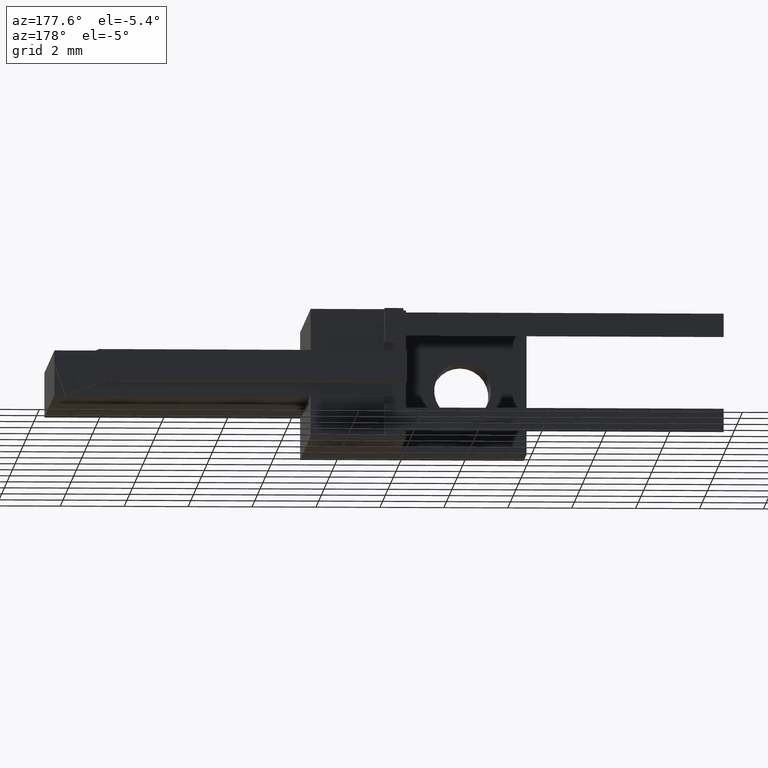
[diagram: clean part render]
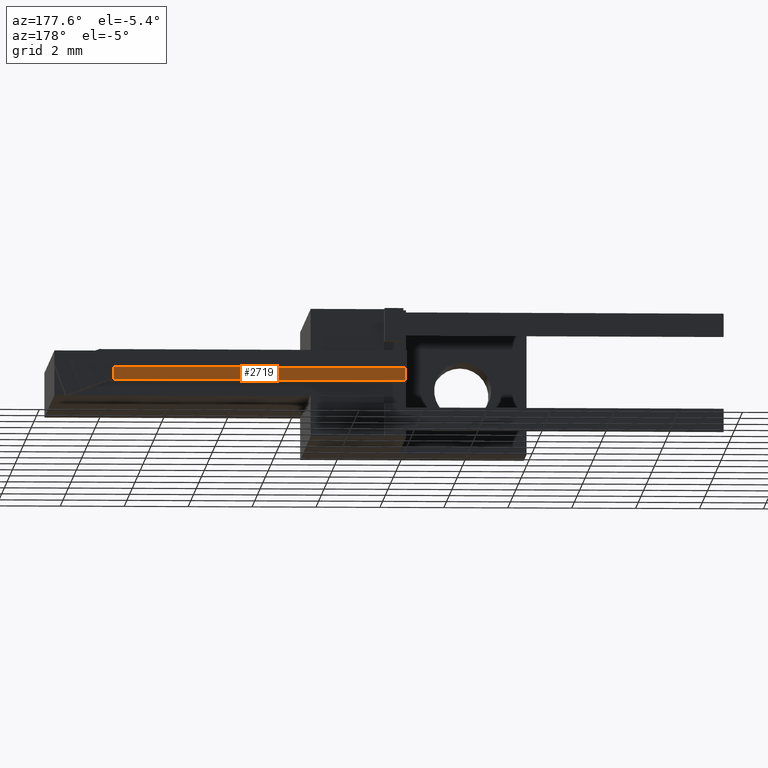
[diagram: same view with one face highlighted and labeled with its STEP entity id]
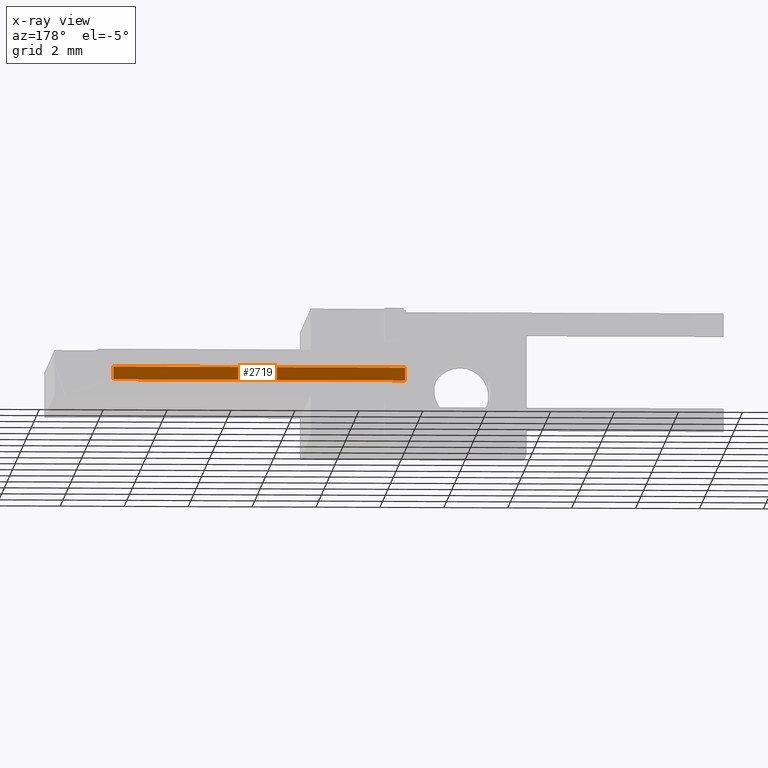
[diagram: x-ray of the same camera — body ghosted, the highlighted face saturated]
A machine part, auxiliary view. The second image highlights one B-rep face of the part: STEP entity #2719.
The next image is the same camera in x-ray: the body ghosted, the highlighted face saturated — about 0% of this face is hidden behind the body in this view.
In plain terms, the highlighted planar face has unit normal (0, -1, 0).
Its self-contained STEP definition (entity closure, byte-faithful):
#797 = DIRECTION ( 'NONE',  ( 1.000000000000000000, -0.0000000000000000000, -5.936279963236445100E-018 ) ) ;
#798 = VECTOR ( 'NONE', #797, 1000.000000000000000 ) ;
#804 = CARTESIAN_POINT ( 'NONE',  ( 9.182000000000000400, 0.5085000000000002900, 0.4499999999999999000 ) ) ;
#805 = LINE ( 'NONE', #804, #798 ) ;
#807 = FACE_OUTER_BOUND ( 'NONE', #2720, .T. ) ;
#822 = DIRECTION ( 'NONE',  ( 0.0000000000000000000, -0.0000000000000000000, -1.000000000000000000 ) ) ;
#833 = PLANE ( 'NONE',  #851 ) ;
#837 = DIRECTION ( 'NONE',  ( 0.0000000000000000000, -1.000000000000000000, 0.0000000000000000000 ) ) ;
#847 = CARTESIAN_POINT ( 'NONE',  ( 0.04999999999999969700, 0.5085000000000002900, 0.4499999999999999000 ) ) ;
#850 = CARTESIAN_POINT ( 'NONE',  ( 9.182000000000000400, 0.5085000000000002900, 0.04999999999999991300 ) ) ;
#851 = AXIS2_PLACEMENT_3D ( 'NONE', #850, #837, #822 ) ;
#1011 = LINE ( 'NONE', #1017, #1016 ) ;
#1015 = DIRECTION ( 'NONE',  ( 0.0000000000000000000, 0.0000000000000000000, 1.000000000000000000 ) ) ;
#1016 = VECTOR ( 'NONE', #1015, 1000.000000000000000 ) ;
#1017 = CARTESIAN_POINT ( 'NONE',  ( 0.04999999999999969700, 0.5085000000000002900, 0.04999999999999991300 ) ) ;
#2437 = VERTEX_POINT ( 'NONE', #3141 ) ;
#2439 = VERTEX_POINT ( 'NONE', #3200 ) ;
#2441 = EDGE_CURVE ( 'NONE', #2437, #2439, #3182, .T. ) ;
#2456 = EDGE_CURVE ( 'NONE', #2457, #2437, #3157, .T. ) ;
#2457 = VERTEX_POINT ( 'NONE', #3162 ) ;
#2714 = EDGE_CURVE ( 'NONE', #2723, #2457, #805, .T. ) ;
#2719 = ADVANCED_FACE ( 'NONE', ( #807 ), #833, .F. ) ;
#2720 = EDGE_LOOP ( 'NONE', ( #2721, #2770, #2771, #2772 ) ) ;
#2721 = ORIENTED_EDGE ( 'NONE', *, *, #2456, .T. ) ;
#2723 = VERTEX_POINT ( 'NONE', #847 ) ;
#2770 = ORIENTED_EDGE ( 'NONE', *, *, #2441, .T. ) ;
#2771 = ORIENTED_EDGE ( 'NONE', *, *, #2780, .T. ) ;
#2772 = ORIENTED_EDGE ( 'NONE', *, *, #2714, .T. ) ;
#2780 = EDGE_CURVE ( 'NONE', #2439, #2723, #1011, .T. ) ;
#3141 = CARTESIAN_POINT ( 'NONE',  ( 9.182000000000000400, 0.5085000000000002900, 0.04999999999999991300 ) ) ;
#3156 = CARTESIAN_POINT ( 'NONE',  ( 9.182000000000000400, 0.5085000000000002900, 0.04999999999999991300 ) ) ;
#3157 = LINE ( 'NONE', #3156, #3164 ) ;
#3162 = CARTESIAN_POINT ( 'NONE',  ( 9.182000000000000400, 0.5085000000000002900, 0.4499999999999999000 ) ) ;
#3163 = DIRECTION ( 'NONE',  ( -0.0000000000000000000, -0.0000000000000000000, -1.000000000000000000 ) ) ;
#3164 = VECTOR ( 'NONE', #3163, 1000.000000000000000 ) ;
#3182 = LINE ( 'NONE', #3198, #3219 ) ;
#3198 = CARTESIAN_POINT ( 'NONE',  ( 9.182000000000000400, 0.5085000000000002900, 0.04999999999999991300 ) ) ;
#3200 = CARTESIAN_POINT ( 'NONE',  ( 0.04999999999999969700, 0.5085000000000002900, 0.04999999999999991300 ) ) ;
#3215 = DIRECTION ( 'NONE',  ( -1.000000000000000000, 0.0000000000000000000, 0.0000000000000000000 ) ) ;
#3219 = VECTOR ( 'NONE', #3215, 1000.000000000000000 ) ;